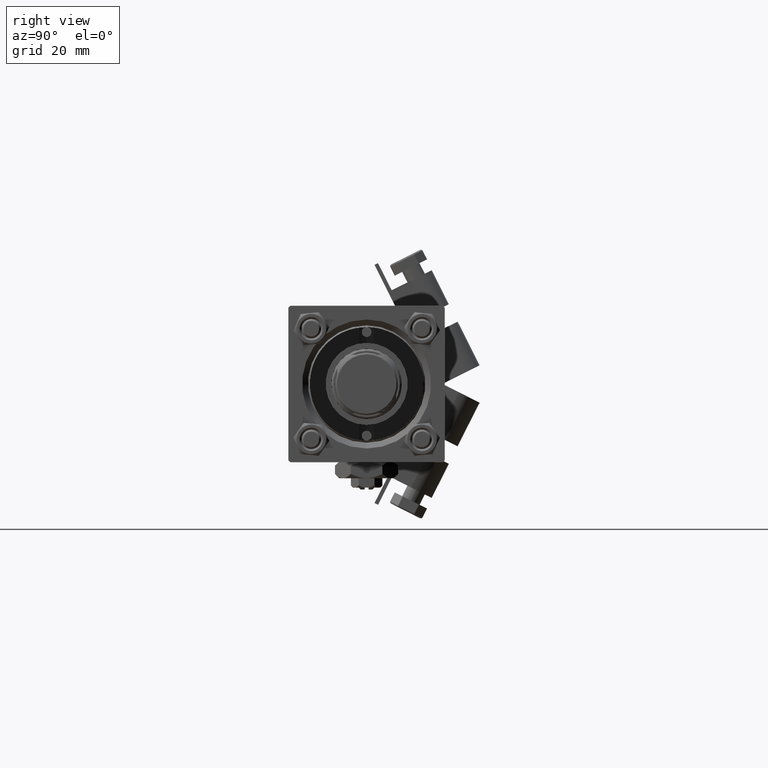
[diagram: clean part render]
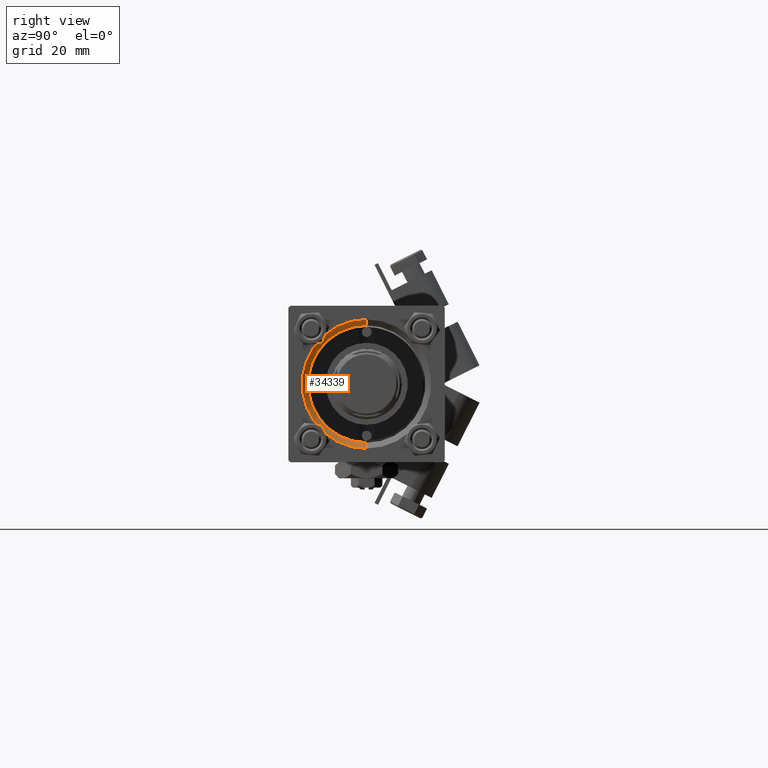
[diagram: same view with one face highlighted and labeled with its STEP entity id]
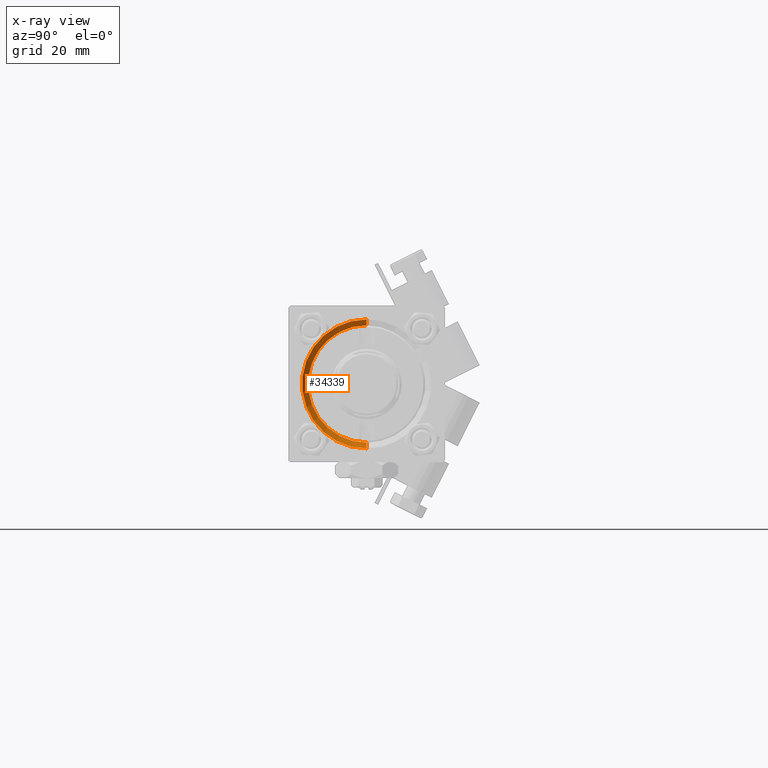
[diagram: x-ray of the same camera — body ghosted, the highlighted face saturated]
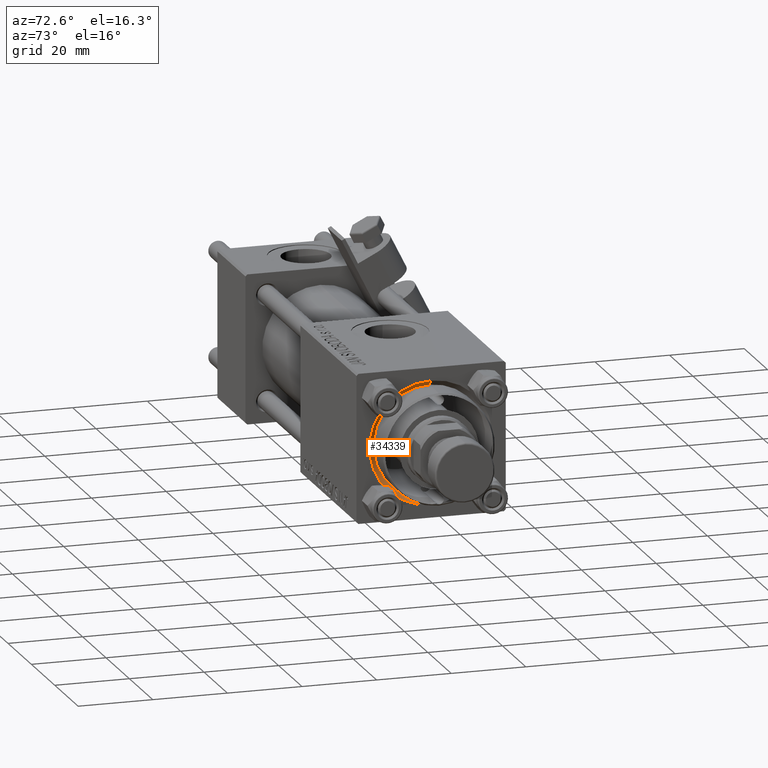
[diagram: same view with one face highlighted and labeled with its STEP entity id]
A machine part, right view. The second image highlights one B-rep face of the part: STEP entity #34339.
The next image is the same camera in x-ray: the body ghosted, the highlighted face saturated — about 0% of this face is hidden behind the body in this view.
A second angle (auxiliary view) of the same face is appended — the face is thin or edge-on in the first view.
In plain terms, the highlighted conical surface has half-angle 45 deg.
Its self-contained STEP definition (entity closure, byte-faithful):
#2089 = AXIS2_PLACEMENT_3D ( 'NONE', #14498, #42249, #52082 ) ;
#3527 = CIRCLE ( 'NONE', #40370, 15.00000000000000000 ) ;
#3949 = DIRECTION ( 'NONE',  ( 1.000000000000000000, 0.000000000000000000, 0.000000000000000000 ) ) ;
#4353 = VERTEX_POINT ( 'NONE', #7149 ) ;
#7149 = CARTESIAN_POINT ( 'NONE',  ( 117.5000000000000000, 0.000000000000000000, -15.00000000000000000 ) ) ;
#7178 = EDGE_CURVE ( 'NONE', #4353, #25734, #39549, .T. ) ;
#8517 = CARTESIAN_POINT ( 'NONE',  ( 119.0000000000000142, 0.000000000000000000, -16.50000000000001421 ) ) ;
#10665 = CONICAL_SURFACE ( 'NONE', #2089, 15.00000000000000000, 0.7853981633974482790 ) ;
#10680 = EDGE_CURVE ( 'NONE', #28651, #4353, #3527, .T. ) ;
#10993 = CARTESIAN_POINT ( 'NONE',  ( 117.5000000000000000, 1.836970198721029589E-15, 15.00000000000000000 ) ) ;
#12054 = LINE ( 'NONE', #10993, #45752 ) ;
#12894 = VECTOR ( 'NONE', #19646, 1000.000000000000114 ) ;
#14498 = CARTESIAN_POINT ( 'NONE',  ( 117.5000000000000000, 0.000000000000000000, 0.000000000000000000 ) ) ;
#14590 = CARTESIAN_POINT ( 'NONE',  ( 119.0000000000000142, 2.020667218593134678E-15, 16.50000000000001421 ) ) ;
#16802 = CARTESIAN_POINT ( 'NONE',  ( 117.5000000000000000, 0.000000000000000000, 0.000000000000000000 ) ) ;
#17345 = EDGE_CURVE ( 'NONE', #28651, #43481, #12054, .T. ) ;
#17380 = ORIENTED_EDGE ( 'NONE', *, *, #10680, .F. ) ;
#19029 = ORIENTED_EDGE ( 'NONE', *, *, #32712, .F. ) ;
#19646 = DIRECTION ( 'NONE',  ( 0.7071067811865474617, 0.000000000000000000, -0.7071067811865474617 ) ) ;
#22634 = DIRECTION ( 'NONE',  ( -1.000000000000000000, -0.000000000000000000, -0.000000000000000000 ) ) ;
#25734 = VERTEX_POINT ( 'NONE', #8517 ) ;
#25847 = FACE_OUTER_BOUND ( 'NONE', #29039, .T. ) ;
#28651 = VERTEX_POINT ( 'NONE', #53112 ) ;
#29039 = EDGE_LOOP ( 'NONE', ( #17380, #36596, #19029, #49304 ) ) ;
#30938 = CARTESIAN_POINT ( 'NONE',  ( 117.5000000000000000, 0.000000000000000000, -15.00000000000000000 ) ) ;
#32440 = DIRECTION ( 'NONE',  ( 0.7071067811865474617, 8.659560562354932858E-17, 0.7071067811865474617 ) ) ;
#32712 = EDGE_CURVE ( 'NONE', #25734, #43481, #51789, .T. ) ;
#33179 = DIRECTION ( 'NONE',  ( 0.000000000000000000, 0.000000000000000000, 1.000000000000000000 ) ) ;
#34339 = ADVANCED_FACE ( 'NONE', ( #25847 ), #10665, .F. ) ;
#36596 = ORIENTED_EDGE ( 'NONE', *, *, #17345, .T. ) ;
#37188 = AXIS2_PLACEMENT_3D ( 'NONE', #47069, #22634, #47337 ) ;
#39549 = LINE ( 'NONE', #30938, #12894 ) ;
#40370 = AXIS2_PLACEMENT_3D ( 'NONE', #16802, #3949, #33179 ) ;
#42249 = DIRECTION ( 'NONE',  ( 1.000000000000000000, 0.000000000000000000, 0.000000000000000000 ) ) ;
#43481 = VERTEX_POINT ( 'NONE', #14590 ) ;
#45752 = VECTOR ( 'NONE', #32440, 1000.000000000000114 ) ;
#47069 = CARTESIAN_POINT ( 'NONE',  ( 119.0000000000000142, 0.000000000000000000, 0.000000000000000000 ) ) ;
#47337 = DIRECTION ( 'NONE',  ( 0.000000000000000000, 0.000000000000000000, 1.000000000000000000 ) ) ;
#49304 = ORIENTED_EDGE ( 'NONE', *, *, #7178, .F. ) ;
#51789 = CIRCLE ( 'NONE', #37188, 16.50000000000001421 ) ;
#52082 = DIRECTION ( 'NONE',  ( 0.000000000000000000, 0.000000000000000000, -1.000000000000000000 ) ) ;
#53112 = CARTESIAN_POINT ( 'NONE',  ( 117.5000000000000000, 1.836970198721029589E-15, 15.00000000000000000 ) ) ;